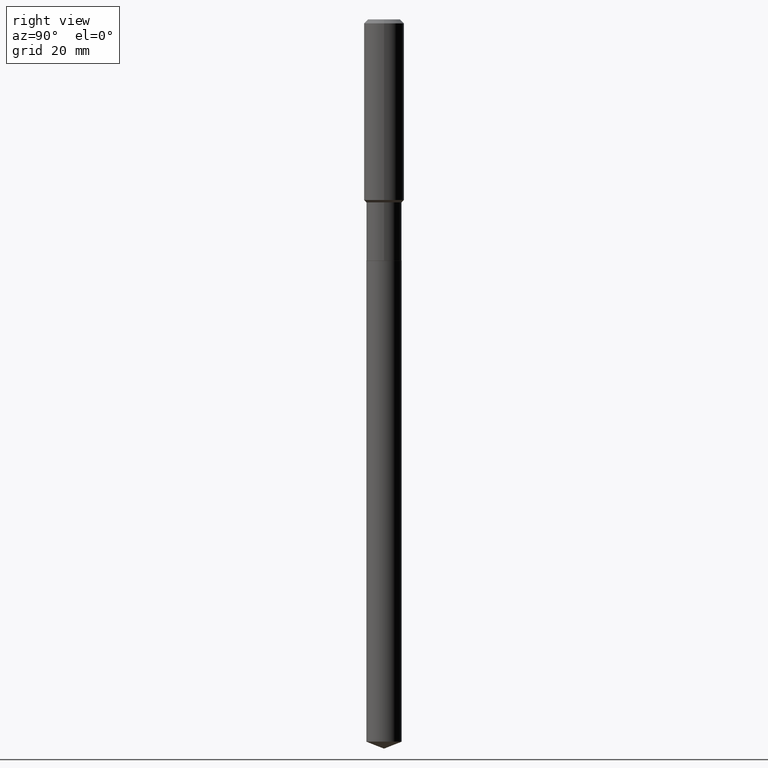
[diagram: clean part render]
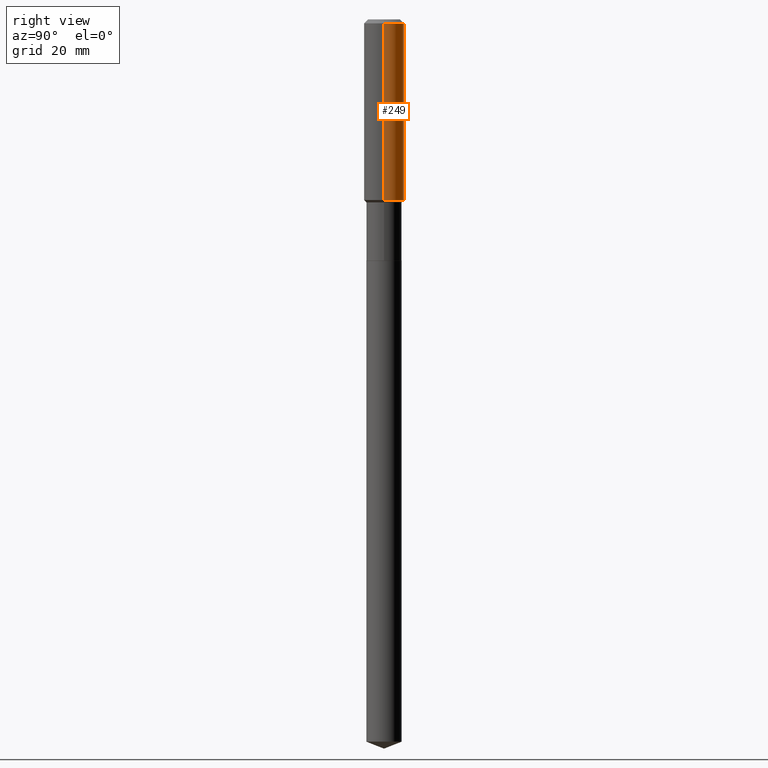
[diagram: same view with one face highlighted and labeled with its STEP entity id]
A machine part, right view. The second image highlights one B-rep face of the part: STEP entity #249.
In plain terms, the highlighted cylindrical surface (edge-blend (fillet) strip) has radius 5 mm, axis along (-0, 0, 1).
Its self-contained STEP definition (entity closure, byte-faithful):
#11 = EDGE_CURVE ( 'NONE', #359, #108, #33, .T. ) ;
#16 = FACE_OUTER_BOUND ( 'NONE', #393, .T. ) ;
#20 = CARTESIAN_POINT ( 'NONE',  ( 0.000000000000000000, 0.000000000000000000, 0.000000000000000000 ) ) ;
#23 = DIRECTION ( 'NONE',  ( -2.445468806185136597E-29, 3.491481338843145583E-15, 1.000000000000000000 ) ) ;
#30 = CARTESIAN_POINT ( 'NONE',  ( 9.627810689950948900E-31, -1.374596203102555561E-16, -0.03937000000000026589 ) ) ;
#33 = CIRCLE ( 'NONE', #272, 0.1968500000000000250 ) ;
#65 = LINE ( 'NONE', #462, #218 ) ;
#79 = AXIS2_PLACEMENT_3D ( 'NONE', #20, #23, #132 ) ;
#89 = EDGE_CURVE ( 'NONE', #362, #108, #333, .T. ) ;
#103 = CARTESIAN_POINT ( 'NONE',  ( 0.1968500000000002192, -7.569880690745819598E-15, -1.774399999999999533 ) ) ;
#108 = VERTEX_POINT ( 'NONE', #471 ) ;
#123 = DIRECTION ( 'NONE',  ( -2.445468806185136877E-29, 3.491481338843145188E-15, 1.000000000000000000 ) ) ;
#132 = DIRECTION ( 'NONE',  ( 1.000000000000000000, -6.982962677686266711E-15, 4.876176775795935793E-29 ) ) ;
#134 = VERTEX_POINT ( 'NONE', #103 ) ;
#138 = CIRCLE ( 'NONE', #342, 0.1968500000000002192 ) ;
#141 = EDGE_CURVE ( 'NONE', #134, #359, #65, .T. ) ;
#173 = CARTESIAN_POINT ( 'NONE',  ( 4.339239849694905201E-29, -6.195284487643276412E-15, -1.774399999999999533 ) ) ;
#192 = EDGE_CURVE ( 'NONE', #134, #362, #138, .T. ) ;
#201 = ORIENTED_EDGE ( 'NONE', *, *, #11, .F. ) ;
#218 = VECTOR ( 'NONE', #123, 39.37007874015748143 ) ;
#221 = CARTESIAN_POINT ( 'NONE',  ( 0.1968500000000000250, -1.512055823412797189E-15, -0.03937000000000026589 ) ) ;
#246 = CARTESIAN_POINT ( 'NONE',  ( -0.1968500000000001082, 1.398703375343757985E-15, -9.682923725166787881E-30 ) ) ;
#249 = ADVANCED_FACE ( 'NONE', ( #16 ), #474, .T. ) ;
#272 = AXIS2_PLACEMENT_3D ( 'NONE', #30, #339, #482 ) ;
#280 = DIRECTION ( 'NONE',  ( -2.445468806185136597E-29, 3.491481338843145583E-15, 1.000000000000000000 ) ) ;
#295 = VECTOR ( 'NONE', #398, 39.37007874015748143 ) ;
#323 = ORIENTED_EDGE ( 'NONE', *, *, #141, .F. ) ;
#333 = LINE ( 'NONE', #246, #295 ) ;
#334 = DIRECTION ( 'NONE',  ( 1.000000000000000000, -6.982962677686265922E-15, 0.000000000000000000 ) ) ;
#339 = DIRECTION ( 'NONE',  ( -2.445468806185136597E-29, 3.491481338843145583E-15, 1.000000000000000000 ) ) ;
#342 = AXIS2_PLACEMENT_3D ( 'NONE', #173, #280, #334 ) ;
#359 = VERTEX_POINT ( 'NONE', #221 ) ;
#362 = VERTEX_POINT ( 'NONE', #442 ) ;
#393 = EDGE_LOOP ( 'NONE', ( #453, #475, #201, #323 ) ) ;
#398 = DIRECTION ( 'NONE',  ( -2.445468806185136877E-29, 3.491481338843145188E-15, 1.000000000000000000 ) ) ;
#442 = CARTESIAN_POINT ( 'NONE',  ( -0.1968500000000002192, -4.796581112299517835E-15, -1.774399999999999533 ) ) ;
#453 = ORIENTED_EDGE ( 'NONE', *, *, #192, .T. ) ;
#462 = CARTESIAN_POINT ( 'NONE',  ( 0.1968500000000001082, -1.374596203102542397E-15, 9.598753983154305062E-30 ) ) ;
#471 = CARTESIAN_POINT ( 'NONE',  ( -0.1968500000000000250, -1.767668678633007617E-15, -0.03937000000000026589 ) ) ;
#474 = CYLINDRICAL_SURFACE ( 'NONE', #79, 0.1968500000000001082 ) ;
#475 = ORIENTED_EDGE ( 'NONE', *, *, #89, .T. ) ;
#482 = DIRECTION ( 'NONE',  ( 1.000000000000000000, -6.982962677686265922E-15, 0.000000000000000000 ) ) ;